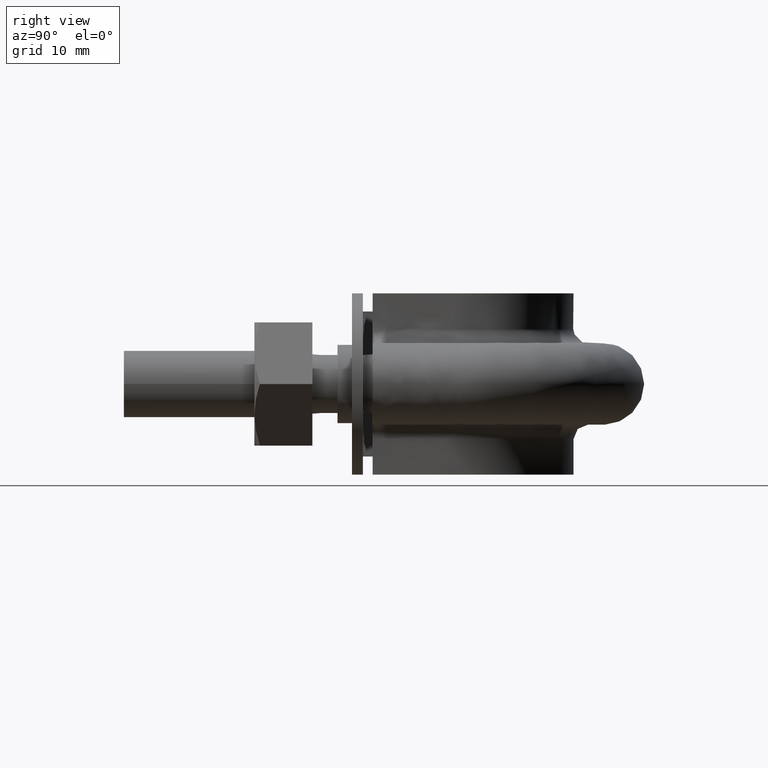
[diagram: clean part render]
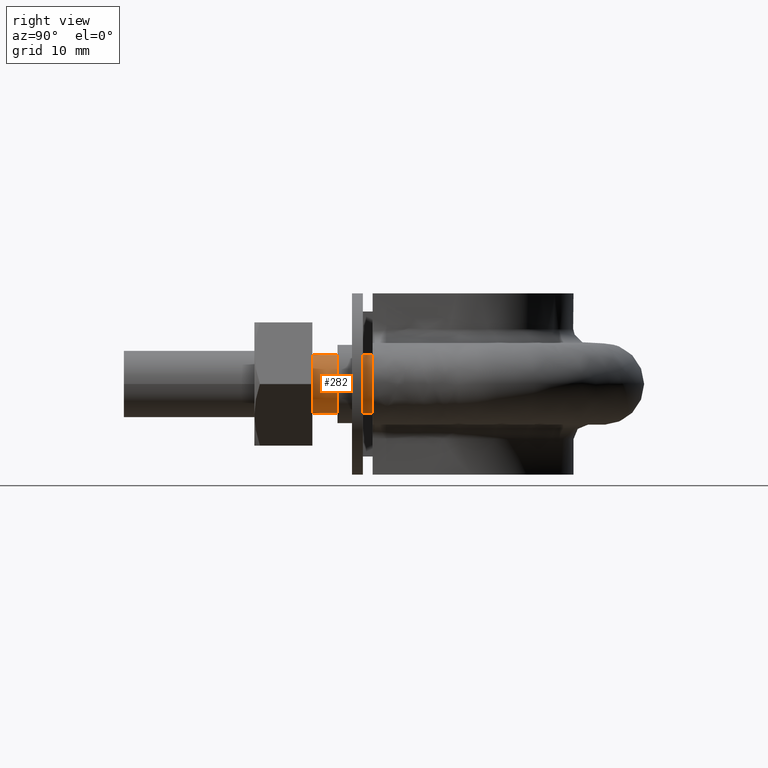
[diagram: same view with one face highlighted and labeled with its STEP entity id]
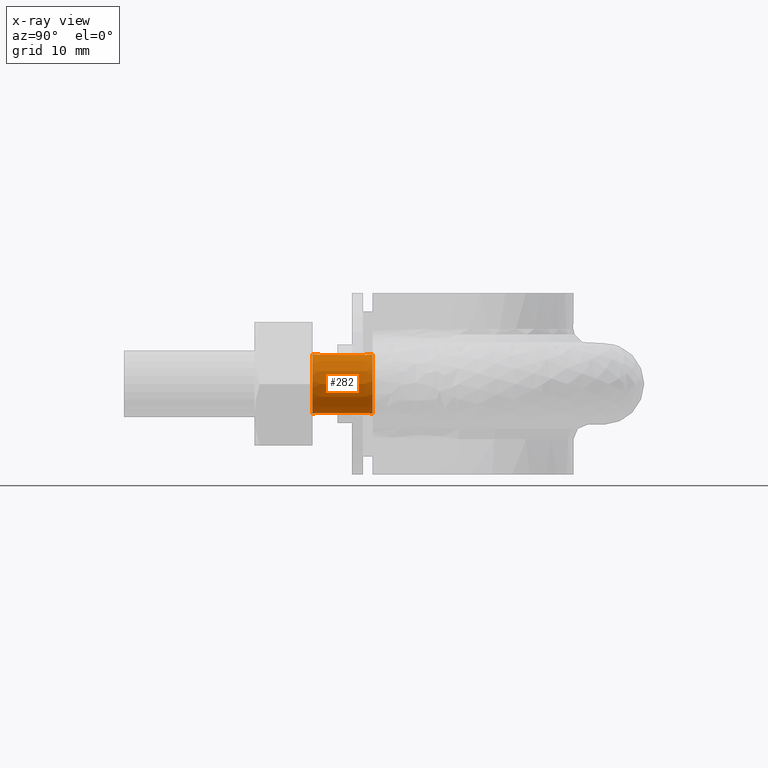
[diagram: x-ray of the same camera — body ghosted, the highlighted face saturated]
A machine part, right view. The second image highlights one B-rep face of the part: STEP entity #282.
The next image is the same camera in x-ray: the body ghosted, the highlighted face saturated — about 0% of this face is hidden behind the body in this view.
In plain terms, the highlighted face is a SurfaceOfExtrusion surface.
Its self-contained STEP definition (entity closure, byte-faithful):
#282 = ADVANCED_FACE( '', ( #404, #405 ), #406, .F. );
#404 = FACE_OUTER_BOUND( '', #1506, .T. );
#405 = FACE_OUTER_BOUND( '', #1507, .T. );
#406 = SURFACE_OF_LINEAR_EXTRUSION( '', #1508, #1509 );
#1506 = EDGE_LOOP( '', ( #1795 ) );
#1507 = EDGE_LOOP( '', ( #1796 ) );
#1508 = B_SPLINE_CURVE_WITH_KNOTS( '', 3, ( #1797, #1798, #1799, #1800, #1801, #1802, #1803, #1804, #1805, #1806 ), .UNSPECIFIED., .T., .F., ( 4, 1, 1, 1, 1, 1, 1, 4 ), ( -1.00000000000000, -0.857142857142857, -0.714285714285714, -0.571428571428571, -0.428571428571429, -0.285714285714286, -0.142857142857143, 0.000000000000000 ), .UNSPECIFIED. );
#1509 = VECTOR( '', #1807, 1000.00000000000 );
#1795 = ORIENTED_EDGE( '', *, *, #2440, .F. );
#1796 = ORIENTED_EDGE( '', *, *, #2443, .T. );
#1797 = CARTESIAN_POINT( '', ( 15.9000000000000, -1.94712410257758E-015, 3.03134155736329E-014 ) );
#1798 = CARTESIAN_POINT( '', ( 15.9000000000000, 4.99176980132965E-015, -1.22184926194405 ) );
#1799 = CARTESIAN_POINT( '', ( 17.0768231851220, 4.84765528634706E-015, -3.66554778583222 ) );
#1800 = CARTESIAN_POINT( '', ( 21.0432697263483, 4.36192172269881E-015, -4.57086332538451 ) );
#1801 = CARTESIAN_POINT( '', ( 24.2241128848103, 3.97239364846231E-015, -2.03422555230243 ) );
#1802 = CARTESIAN_POINT( '', ( 24.2241128848103, 3.97239364846231E-015, 2.03422555230249 ) );
#1803 = CARTESIAN_POINT( '', ( 21.0432697263483, -2.57697218120842E-015, 4.57086332538457 ) );
#1804 = CARTESIAN_POINT( '', ( 17.0768231851220, 4.84765528634706E-015, 3.66554778583228 ) );
#1805 = CARTESIAN_POINT( '', ( 15.9000000000000, -1.94712410257758E-015, 1.22184926194411 ) );
#1806 = CARTESIAN_POINT( '', ( 15.9000000000000, -1.94712410257758E-015, 3.03134155736329E-014 ) );
#1807 = DIRECTION( '', ( 1.22460635382237E-016, 1.00000000000000, -8.67968352402046E-016 ) );
#2440 = EDGE_CURVE( '', #2661, #2661, #2662, .T. );
#2443 = EDGE_CURVE( '', #2667, #2667, #2668, .T. );
#2661 = VERTEX_POINT( '', #3181 );
#2662 = B_SPLINE_CURVE_WITH_KNOTS( '', 3, ( #3182, #3183, #3184, #3185, #3186, #3187, #3188, #3189, #3190, #3191 ), .UNSPECIFIED., .T., .F., ( 4, 1, 1, 1, 1, 1, 1, 4 ), ( -1.00000000000000, -0.857142857142857, -0.714285714285714, -0.571428571428571, -0.428571428571429, -0.285714285714286, -0.142857142857143, 0.000000000000000 ), .UNSPECIFIED. );
#2667 = VERTEX_POINT( '', #3196 );
#2668 = B_SPLINE_CURVE_WITH_KNOTS( '', 3, ( #3197, #3198, #3199, #3200, #3201, #3202, #3203, #3204, #3205, #3206 ), .UNSPECIFIED., .T., .F., ( 4, 1, 1, 1, 1, 1, 1, 4 ), ( -1.00000000000000, -0.857142857142857, -0.714285714285714, -0.571428571428571, -0.428571428571429, -0.285714285714286, -0.142857142857143, 0.000000000000000 ), .UNSPECIFIED. );
#3181 = CARTESIAN_POINT( '', ( 15.9000000000000, 26.0000000000000, 7.74623841117974E-015 ) );
#3182 = CARTESIAN_POINT( '', ( 15.9000000000000, 26.0000000000000, 7.74623841117974E-015 ) );
#3183 = CARTESIAN_POINT( '', ( 15.9000000000000, 26.0000000000000, -1.22184926194408 ) );
#3184 = CARTESIAN_POINT( '', ( 17.0768231851220, 26.0000000000000, -3.66554778583224 ) );
#3185 = CARTESIAN_POINT( '', ( 21.0432697263483, 26.0000000000000, -4.57086332538453 ) );
#3186 = CARTESIAN_POINT( '', ( 24.2241128848103, 26.0000000000000, -2.03422555230246 ) );
#3187 = CARTESIAN_POINT( '', ( 24.2241128848103, 26.0000000000000, 2.03422555230247 ) );
#3188 = CARTESIAN_POINT( '', ( 21.0432697263483, 26.0000000000000, 4.57086332538454 ) );
#3189 = CARTESIAN_POINT( '', ( 17.0768231851220, 26.0000000000000, 3.66554778583226 ) );
#3190 = CARTESIAN_POINT( '', ( 15.9000000000000, 26.0000000000000, 1.22184926194409 ) );
#3191 = CARTESIAN_POINT( '', ( 15.9000000000000, 26.0000000000000, 7.74623841117974E-015 ) );
#3196 = CARTESIAN_POINT( '', ( 15.9000000000000, 34.3000000000000, 5.42101086242752E-016 ) );
#3197 = CARTESIAN_POINT( '', ( 15.9000000000000, 34.3000000000000, 5.42101086242752E-016 ) );
#3198 = CARTESIAN_POINT( '', ( 15.9000000000000, 34.3000000000000, -1.22184926194408 ) );
#3199 = CARTESIAN_POINT( '', ( 17.0768231851220, 34.3000000000000, -3.66554778583225 ) );
#3200 = CARTESIAN_POINT( '', ( 21.0432697263483, 34.3000000000000, -4.57086332538454 ) );
#3201 = CARTESIAN_POINT( '', ( 24.2241128848103, 34.3000000000000, -2.03422555230246 ) );
#3202 = CARTESIAN_POINT( '', ( 24.2241128848103, 34.3000000000000, 2.03422555230246 ) );
#3203 = CARTESIAN_POINT( '', ( 21.0432697263483, 34.3000000000000, 4.57086332538454 ) );
#3204 = CARTESIAN_POINT( '', ( 17.0768231851220, 34.3000000000000, 3.66554778583225 ) );
#3205 = CARTESIAN_POINT( '', ( 15.9000000000000, 34.3000000000000, 1.22184926194408 ) );
#3206 = CARTESIAN_POINT( '', ( 15.9000000000000, 34.3000000000000, 5.42101086242752E-016 ) );